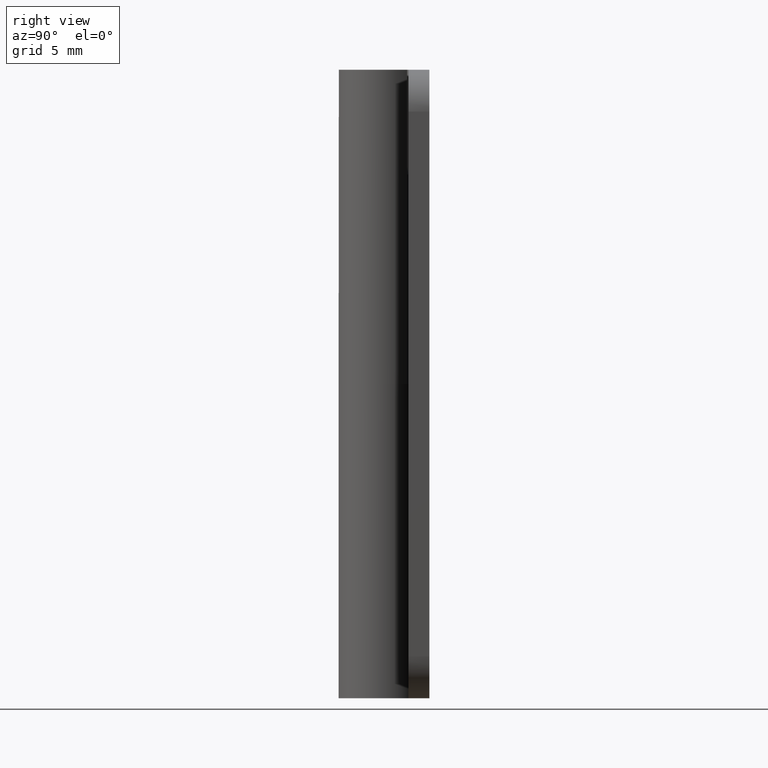
[diagram: clean part render]
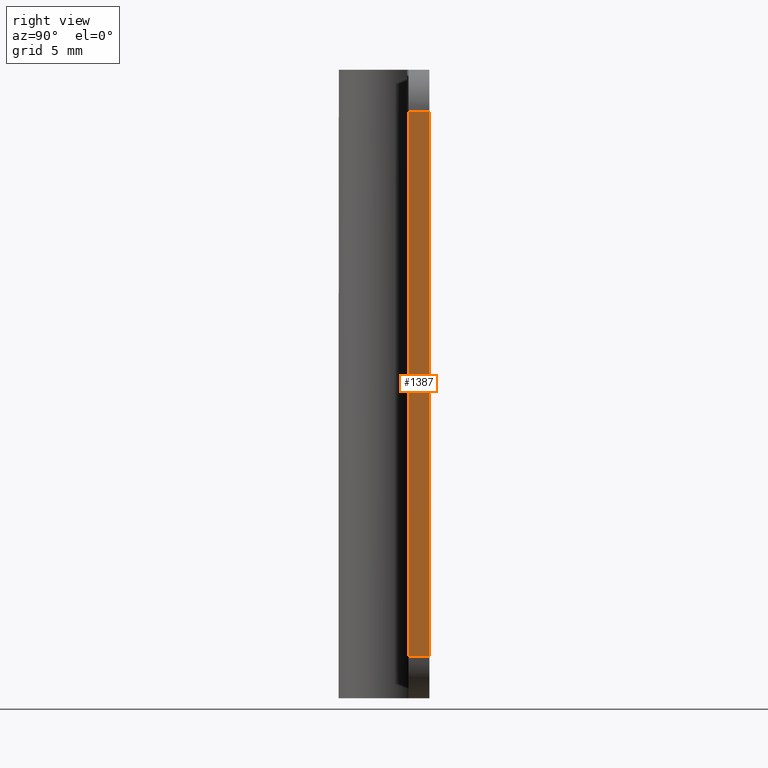
[diagram: same view with one face highlighted and labeled with its STEP entity id]
A machine part, right view. The second image highlights one B-rep face of the part: STEP entity #1387.
In plain terms, the highlighted face is a freeform B-spline surface patch.
Its self-contained STEP definition (entity closure, byte-faithful):
#995=CARTESIAN_POINT('',(13.0,1.750000000000000,42.000006999999947));
#996=VERTEX_POINT('',#995);
#1014=CARTESIAN_POINT('',(13.0,3.249998000000000,42.000006999999947));
#1015=VERTEX_POINT('',#1014);
#1016=CARTESIAN_POINT('',(13.0,3.249998000000000,42.000006999999947));
#1017=CARTESIAN_POINT('',(13.0,1.750000000000000,42.000006999999947));
#1018=QUASI_UNIFORM_CURVE('',1,(#1016,#1017),.UNSPECIFIED.,.F.,.U.);
#1019=EDGE_CURVE('',#1015,#996,#1018,.T.);
#1061=CARTESIAN_POINT('',(13.0,1.750000000000000,3.0));
#1062=VERTEX_POINT('',#1061);
#1084=CARTESIAN_POINT('',(13.0,3.249998000000000,3.0));
#1085=VERTEX_POINT('',#1084);
#1100=CARTESIAN_POINT('',(13.0,1.750000000000000,3.0));
#1101=CARTESIAN_POINT('',(13.0,3.249998000000000,3.0));
#1102=QUASI_UNIFORM_CURVE('',1,(#1100,#1101),.UNSPECIFIED.,.F.,.U.);
#1103=EDGE_CURVE('',#1062,#1085,#1102,.T.);
#1368=CARTESIAN_POINT('',(13.0,1.675075102807287,1.051949725939582));
#1369=CARTESIAN_POINT('',(13.0,1.675075102807287,43.948058320122080));
#1370=CARTESIAN_POINT('',(13.0,3.324922937425795,1.051949725939582));
#1371=CARTESIAN_POINT('',(13.0,3.324922937425795,43.948058320122080));
#1372=B_SPLINE_SURFACE_WITH_KNOTS('',1,1,((#1368,#1370),(#1369,#1371)),.UNSPECIFIED.,.F.,.F.,.U.,(2,2),(2,2),(0.0,42.896108594182500),(0.041708334948495,0.958291687403247),.UNSPECIFIED.);
#1373=CARTESIAN_POINT('',(13.0,1.750000000000000,42.000006999999947));
#1374=CARTESIAN_POINT('',(13.0,1.750000000000000,3.0));
#1375=QUASI_UNIFORM_CURVE('',1,(#1373,#1374),.UNSPECIFIED.,.F.,.U.);
#1376=EDGE_CURVE('',#996,#1062,#1375,.T.);
#1377=ORIENTED_EDGE('',*,*,#1376,.T.);
#1378=ORIENTED_EDGE('',*,*,#1103,.T.);
#1379=CARTESIAN_POINT('',(13.0,3.249998000000000,42.000006999999947));
#1380=CARTESIAN_POINT('',(13.0,3.249998000000000,3.0));
#1381=QUASI_UNIFORM_CURVE('',1,(#1379,#1380),.UNSPECIFIED.,.F.,.U.);
#1382=EDGE_CURVE('',#1015,#1085,#1381,.T.);
#1383=ORIENTED_EDGE('',*,*,#1382,.F.);
#1384=ORIENTED_EDGE('',*,*,#1019,.T.);
#1385=EDGE_LOOP('',(#1377,#1378,#1383,#1384));
#1386=FACE_OUTER_BOUND('',#1385,.T.);
#1387=ADVANCED_FACE('',(#1386),#1372,.F.);